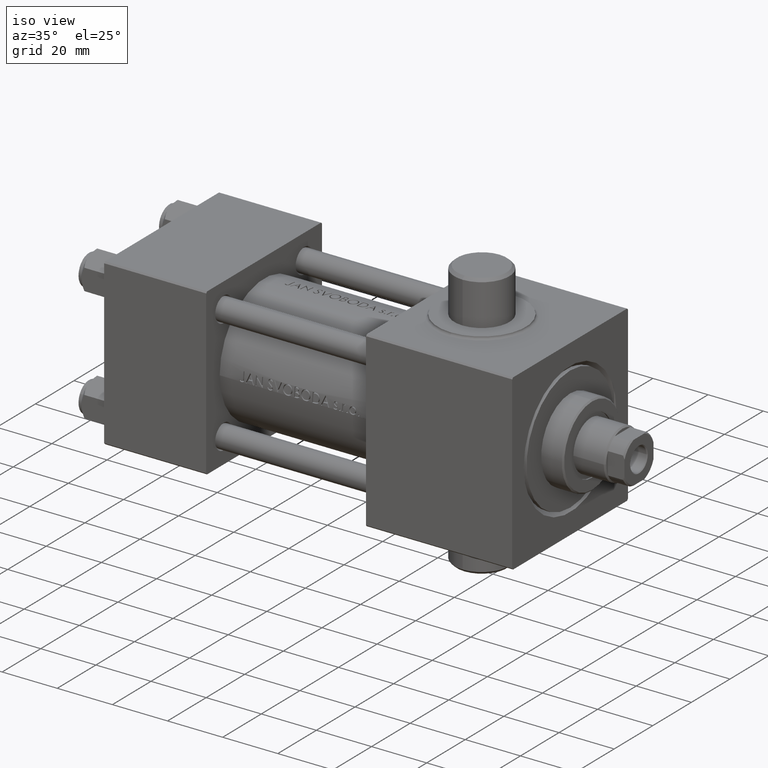
[diagram: clean part render]
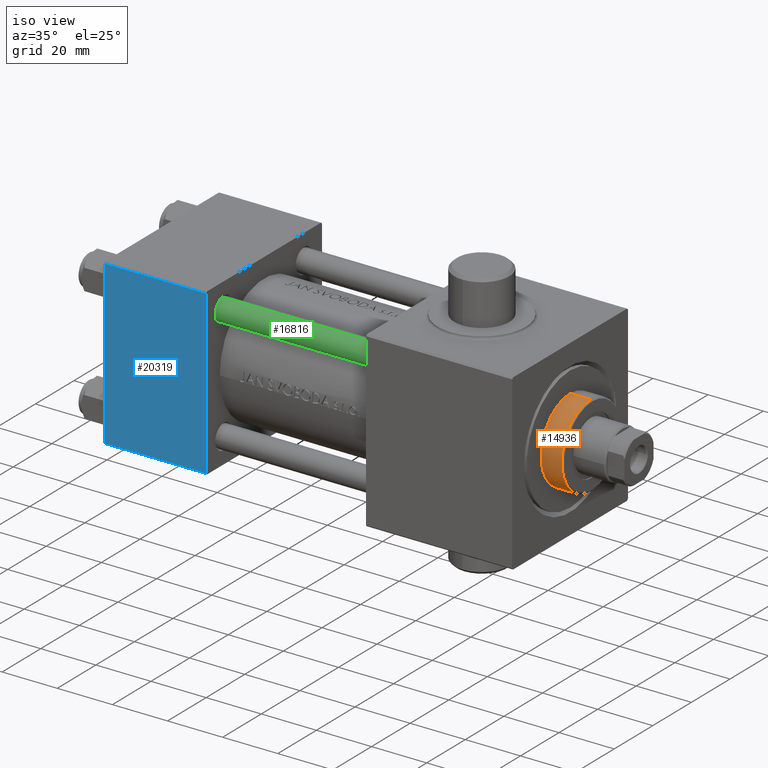
[diagram: same view with three faces highlighted in distinct colors, each labeled with its STEP entity id]
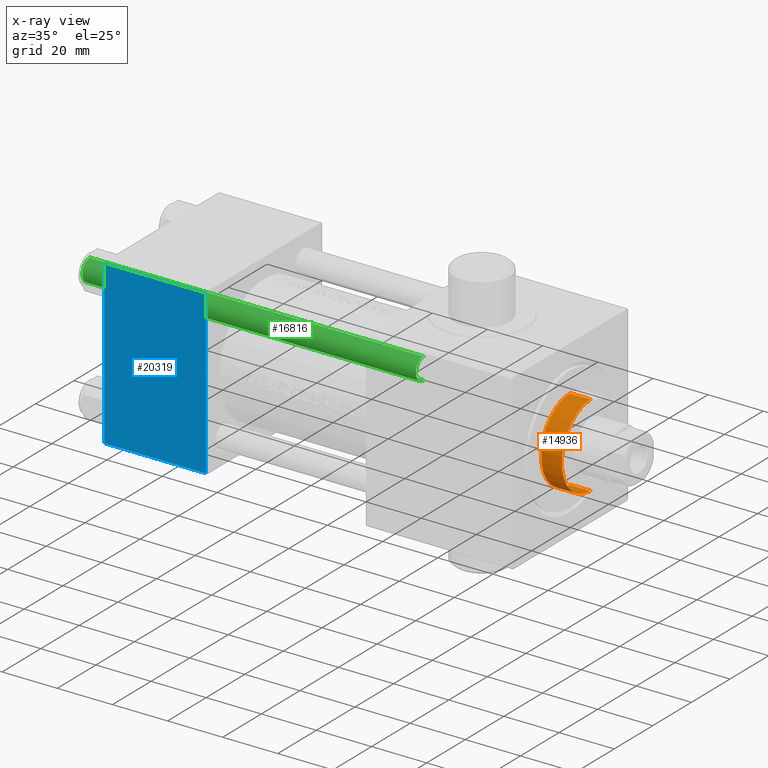
[diagram: x-ray of the same camera — body ghosted, the three highlighted faces saturated]
A machine part, iso view with three faces highlighted in distinct colors.
The next image is the same camera in x-ray (body ghosted, the three faces saturated) — at least one of them is partly hidden behind the body in this view.
Their STEP definitions:

[orange] entity #14936 — the highlighted cylindrical surface (partial cylindrical patch) has radius 15 mm, axis along (-1, -0, 0).
#1258 = VERTEX_POINT ( 'NONE', #35273 ) ;
#1856 = DIRECTION ( 'NONE',  ( -1.000000000000000000, 0.000000000000000000, 0.000000000000000000 ) ) ;
#2547 = EDGE_CURVE ( 'NONE', #6327, #14029, #19753, .T. ) ;
#2623 = DIRECTION ( 'NONE',  ( -0.000000000000000000, -0.000000000000000000, -1.000000000000000000 ) ) ;
#3514 = CARTESIAN_POINT ( 'NONE',  ( 0.000000000000000000, 0.000000000000000000, 34.19999999999999574 ) ) ;
#5783 = AXIS2_PLACEMENT_3D ( 'NONE', #3514, #11025, #17121 ) ;
#6327 = VERTEX_POINT ( 'NONE', #20701 ) ;
#7077 = EDGE_CURVE ( 'NONE', #25164, #14029, #18888, .T. ) ;
#7679 = EDGE_CURVE ( 'NONE', #1258, #25164, #21935, .T. ) ;
#7843 = ORIENTED_EDGE ( 'NONE', *, *, #2547, .F. ) ;
#8777 = CARTESIAN_POINT ( 'NONE',  ( 15.00000000000000000, 1.836970198721029589E-15, 26.69999999999999929 ) ) ;
#9803 = FACE_OUTER_BOUND ( 'NONE', #41822, .T. ) ;
#11025 = DIRECTION ( 'NONE',  ( 0.000000000000000000, 0.000000000000000000, -1.000000000000000000 ) ) ;
#11035 = CIRCLE ( 'NONE', #5783, 15.00000000000000000 ) ;
#14029 = VERTEX_POINT ( 'NONE', #8777 ) ;
#14936 = ADVANCED_FACE ( 'NONE', ( #9803 ), #23854, .T. ) ;
#15362 = ORIENTED_EDGE ( 'NONE', *, *, #7679, .T. ) ;
#17121 = DIRECTION ( 'NONE',  ( 1.000000000000000000, 0.000000000000000000, 0.000000000000000000 ) ) ;
#17209 = CARTESIAN_POINT ( 'NONE',  ( -15.00000000000000000, 0.000000000000000000, 26.69999999999999929 ) ) ;
#17366 = CARTESIAN_POINT ( 'NONE',  ( 15.00000000000000000, 1.836970198721029589E-15, 34.69999999999999574 ) ) ;
#17973 = EDGE_CURVE ( 'NONE', #6327, #1258, #11035, .T. ) ;
#18888 = CIRCLE ( 'NONE', #33874, 15.00000000000000000 ) ;
#19753 = LINE ( 'NONE', #17366, #20386 ) ;
#20386 = VECTOR ( 'NONE', #2623, 1000.000000000000000 ) ;
#20701 = CARTESIAN_POINT ( 'NONE',  ( 15.00000000000000000, 1.836970198721029589E-15, 34.19999999999999574 ) ) ;
#21935 = LINE ( 'NONE', #39279, #33908 ) ;
#23854 = CYLINDRICAL_SURFACE ( 'NONE', #39344, 15.00000000000000000 ) ;
#25164 = VERTEX_POINT ( 'NONE', #17209 ) ;
#28734 = DIRECTION ( 'NONE',  ( 1.000000000000000000, 0.000000000000000000, 0.000000000000000000 ) ) ;
#29230 = ORIENTED_EDGE ( 'NONE', *, *, #17973, .T. ) ;
#33874 = AXIS2_PLACEMENT_3D ( 'NONE', #46288, #35991, #28734 ) ;
#33908 = VECTOR ( 'NONE', #40213, 1000.000000000000000 ) ;
#33947 = CARTESIAN_POINT ( 'NONE',  ( 0.000000000000000000, 0.000000000000000000, 34.69999999999999574 ) ) ;
#35273 = CARTESIAN_POINT ( 'NONE',  ( -15.00000000000000000, 0.000000000000000000, 34.19999999999999574 ) ) ;
#35991 = DIRECTION ( 'NONE',  ( 0.000000000000000000, 0.000000000000000000, 1.000000000000000000 ) ) ;
#39279 = CARTESIAN_POINT ( 'NONE',  ( -15.00000000000000000, 0.000000000000000000, 34.69999999999999574 ) ) ;
#39344 = AXIS2_PLACEMENT_3D ( 'NONE', #33947, #45180, #1856 ) ;
#40213 = DIRECTION ( 'NONE',  ( -0.000000000000000000, -0.000000000000000000, -1.000000000000000000 ) ) ;
#41312 = ORIENTED_EDGE ( 'NONE', *, *, #7077, .T. ) ;
#41822 = EDGE_LOOP ( 'NONE', ( #7843, #29230, #15362, #41312 ) ) ;
#45180 = DIRECTION ( 'NONE',  ( -0.000000000000000000, -0.000000000000000000, -1.000000000000000000 ) ) ;
#46288 = CARTESIAN_POINT ( 'NONE',  ( 0.000000000000000000, 0.000000000000000000, 26.69999999999999929 ) ) ;

[blue] entity #20319 — the highlighted planar face has unit normal (0, -1, -0).
#878 = CARTESIAN_POINT ( 'NONE',  ( 37.00000000000000000, 29.99999999999999289, -30.00000000000000000 ) ) ;
#2342 = DIRECTION ( 'NONE',  ( 0.000000000000000000, 1.000000000000000000, 1.156482317317871725E-16 ) ) ;
#5313 = EDGE_CURVE ( 'NONE', #14006, #28212, #10673, .T. ) ;
#5761 = CARTESIAN_POINT ( 'NONE',  ( 0.000000000000000000, -29.50000000000000000, -30.00000000000000711 ) ) ;
#5860 = VECTOR ( 'NONE', #7919, 1000.000000000000000 ) ;
#6481 = AXIS2_PLACEMENT_3D ( 'NONE', #35128, #6781, #2342 ) ;
#6781 = DIRECTION ( 'NONE',  ( 0.000000000000000000, 1.156482317317871725E-16, -1.000000000000000000 ) ) ;
#7519 = CARTESIAN_POINT ( 'NONE',  ( 37.00000000000000000, 29.49999999999997868, -30.00000000000000000 ) ) ;
#7919 = DIRECTION ( 'NONE',  ( 0.000000000000000000, -1.000000000000000000, -1.156482317317871725E-16 ) ) ;
#10673 = LINE ( 'NONE', #46271, #15888 ) ;
#10725 = LINE ( 'NONE', #25247, #26181 ) ;
#10758 = DIRECTION ( 'NONE',  ( 1.000000000000000000, 0.000000000000000000, 0.000000000000000000 ) ) ;
#11478 = ORIENTED_EDGE ( 'NONE', *, *, #39192, .T. ) ;
#11796 = ORIENTED_EDGE ( 'NONE', *, *, #5313, .F. ) ;
#14006 = VERTEX_POINT ( 'NONE', #28785 ) ;
#15628 = VERTEX_POINT ( 'NONE', #7519 ) ;
#15888 = VECTOR ( 'NONE', #17234, 1000.000000000000000 ) ;
#17234 = DIRECTION ( 'NONE',  ( 0.000000000000000000, -1.000000000000000000, -1.156482317317871725E-16 ) ) ;
#17549 = FACE_OUTER_BOUND ( 'NONE', #39056, .T. ) ;
#20319 = ADVANCED_FACE ( 'NONE', ( #17549 ), #23885, .T. ) ;
#21795 = CARTESIAN_POINT ( 'NONE',  ( 37.00000000000000000, -29.50000000000000000, -30.00000000000000711 ) ) ;
#23885 = PLANE ( 'NONE',  #6481 ) ;
#25247 = CARTESIAN_POINT ( 'NONE',  ( 0.000000000000000000, -29.50000000000001066, -30.00000000000000711 ) ) ;
#25975 = CARTESIAN_POINT ( 'NONE',  ( 37.00000000000000000, 29.49999999999997868, -30.00000000000000000 ) ) ;
#26181 = VECTOR ( 'NONE', #36026, 1000.000000000000000 ) ;
#28212 = VERTEX_POINT ( 'NONE', #5761 ) ;
#28785 = CARTESIAN_POINT ( 'NONE',  ( 0.000000000000000000, 29.49999999999997868, -30.00000000000000000 ) ) ;
#29487 = LINE ( 'NONE', #25975, #43476 ) ;
#32072 = EDGE_CURVE ( 'NONE', #15628, #36626, #43521, .T. ) ;
#33357 = ORIENTED_EDGE ( 'NONE', *, *, #32072, .T. ) ;
#35128 = CARTESIAN_POINT ( 'NONE',  ( 37.00000000000000000, 29.99999999999999289, -30.00000000000000000 ) ) ;
#36026 = DIRECTION ( 'NONE',  ( -1.000000000000000000, 0.000000000000000000, 0.000000000000000000 ) ) ;
#36296 = EDGE_CURVE ( 'NONE', #36626, #28212, #10725, .T. ) ;
#36626 = VERTEX_POINT ( 'NONE', #21795 ) ;
#39056 = EDGE_LOOP ( 'NONE', ( #11796, #11478, #33357, #40603 ) ) ;
#39192 = EDGE_CURVE ( 'NONE', #14006, #15628, #29487, .T. ) ;
#40603 = ORIENTED_EDGE ( 'NONE', *, *, #36296, .T. ) ;
#43476 = VECTOR ( 'NONE', #10758, 1000.000000000000000 ) ;
#43521 = LINE ( 'NONE', #878, #5860 ) ;
#46271 = CARTESIAN_POINT ( 'NONE',  ( 0.000000000000000000, 29.99999999999999289, -30.00000000000000000 ) ) ;

[green] entity #16816 — the highlighted cylindrical surface (edge-blend (fillet) strip) has radius 4 mm, axis along (-1, 0, 0).
#279 = CIRCLE ( 'NONE', #41436, 4.000000000000000000 ) ;
#1228 = AXIS2_PLACEMENT_3D ( 'NONE', #40256, #8161, #12130 ) ;
#2932 = VECTOR ( 'NONE', #45988, 1000.000000000000000 ) ;
#3905 = DIRECTION ( 'NONE',  ( -0.000000000000000000, -0.000000000000000000, -1.000000000000000000 ) ) ;
#7673 = EDGE_CURVE ( 'NONE', #41065, #12744, #39518, .T. ) ;
#8161 = DIRECTION ( 'NONE',  ( 0.000000000000000000, 0.000000000000000000, -1.000000000000000000 ) ) ;
#8221 = FACE_OUTER_BOUND ( 'NONE', #33818, .T. ) ;
#9500 = ORIENTED_EDGE ( 'NONE', *, *, #33481, .F. ) ;
#9839 = EDGE_CURVE ( 'NONE', #12744, #32780, #279, .T. ) ;
#12130 = DIRECTION ( 'NONE',  ( 1.000000000000000000, 0.000000000000000000, 0.000000000000000000 ) ) ;
#12744 = VERTEX_POINT ( 'NONE', #13154 ) ;
#13154 = CARTESIAN_POINT ( 'NONE',  ( 4.000000000000000000, 4.898587196589411843E-16, 0.5000000000000559552 ) ) ;
#14423 = VECTOR ( 'NONE', #3905, 1000.000000000000000 ) ;
#14781 = ORIENTED_EDGE ( 'NONE', *, *, #9839, .T. ) ;
#15935 = CARTESIAN_POINT ( 'NONE',  ( 0.000000000000000000, 0.000000000000000000, 122.0000000000000000 ) ) ;
#16816 = ADVANCED_FACE ( 'NONE', ( #8221 ), #22503, .T. ) ;
#17491 = ORIENTED_EDGE ( 'NONE', *, *, #7673, .T. ) ;
#18118 = CARTESIAN_POINT ( 'NONE',  ( -4.000000000000000000, 0.000000000000000000, 122.0000000000000000 ) ) ;
#18566 = ORIENTED_EDGE ( 'NONE', *, *, #19145, .T. ) ;
#19145 = EDGE_CURVE ( 'NONE', #26445, #41065, #39383, .T. ) ;
#19445 = DIRECTION ( 'NONE',  ( -0.000000000000000000, -0.000000000000000000, -1.000000000000000000 ) ) ;
#22503 = CYLINDRICAL_SURFACE ( 'NONE', #43147, 4.000000000000000000 ) ;
#22547 = CARTESIAN_POINT ( 'NONE',  ( -4.000000000000000000, 0.000000000000000000, 0.5000000000000559552 ) ) ;
#23580 = DIRECTION ( 'NONE',  ( -0.000000000000000000, -0.000000000000000000, 1.000000000000000000 ) ) ;
#24492 = CARTESIAN_POINT ( 'NONE',  ( 4.000000000000000000, 4.898587196589411843E-16, 121.5000000000000426 ) ) ;
#25137 = LINE ( 'NONE', #18118, #2932 ) ;
#25451 = CARTESIAN_POINT ( 'NONE',  ( 4.000000000000000000, 4.898587196589411843E-16, 122.0000000000000000 ) ) ;
#26445 = VERTEX_POINT ( 'NONE', #29590 ) ;
#29590 = CARTESIAN_POINT ( 'NONE',  ( -4.000000000000000000, 0.000000000000000000, 121.5000000000000426 ) ) ;
#32780 = VERTEX_POINT ( 'NONE', #22547 ) ;
#33481 = EDGE_CURVE ( 'NONE', #26445, #32780, #25137, .T. ) ;
#33818 = EDGE_LOOP ( 'NONE', ( #18566, #17491, #14781, #9500 ) ) ;
#36791 = DIRECTION ( 'NONE',  ( -1.000000000000000000, 0.000000000000000000, 0.000000000000000000 ) ) ;
#39383 = CIRCLE ( 'NONE', #1228, 4.000000000000000000 ) ;
#39518 = LINE ( 'NONE', #25451, #14423 ) ;
#40256 = CARTESIAN_POINT ( 'NONE',  ( 0.000000000000000000, 0.000000000000000000, 121.5000000000000426 ) ) ;
#41065 = VERTEX_POINT ( 'NONE', #24492 ) ;
#41436 = AXIS2_PLACEMENT_3D ( 'NONE', #45602, #23580, #41636 ) ;
#41636 = DIRECTION ( 'NONE',  ( 1.000000000000000000, 0.000000000000000000, 0.000000000000000000 ) ) ;
#43147 = AXIS2_PLACEMENT_3D ( 'NONE', #15935, #19445, #36791 ) ;
#45602 = CARTESIAN_POINT ( 'NONE',  ( 0.000000000000000000, 0.000000000000000000, 0.5000000000000559552 ) ) ;
#45988 = DIRECTION ( 'NONE',  ( -0.000000000000000000, -0.000000000000000000, -1.000000000000000000 ) ) ;